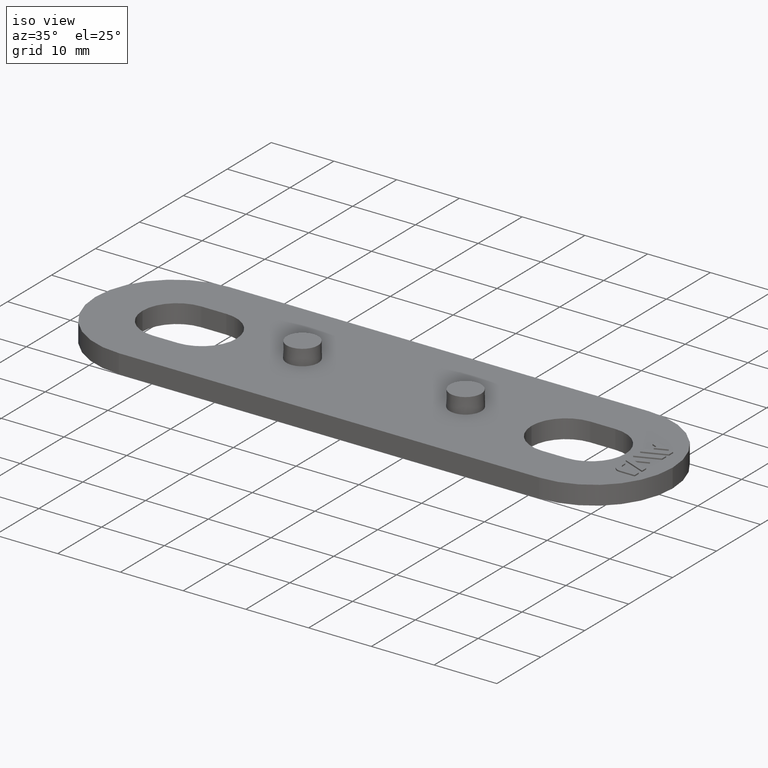
[diagram: clean part render]
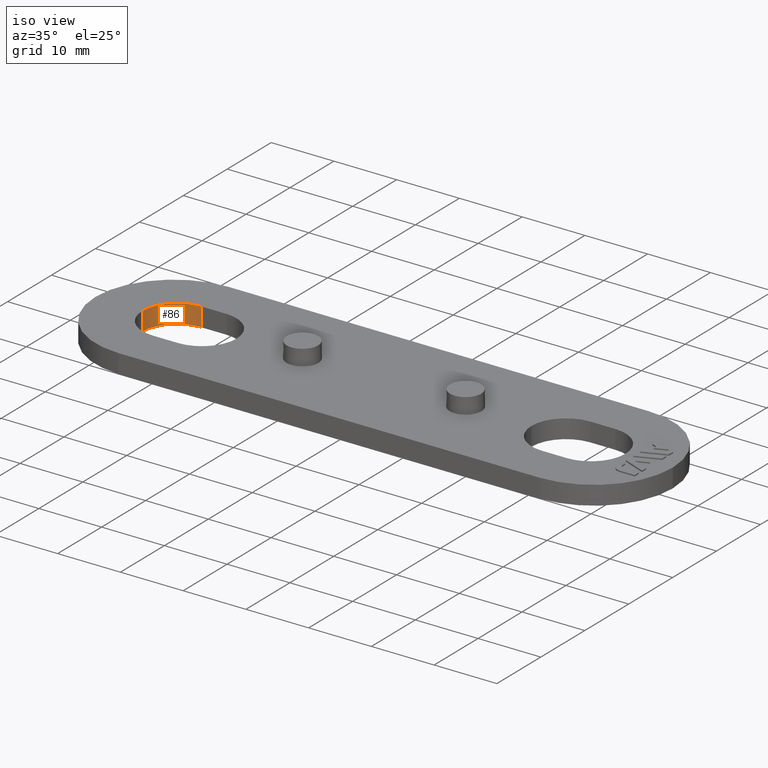
[diagram: same view with one face highlighted and labeled with its STEP entity id]
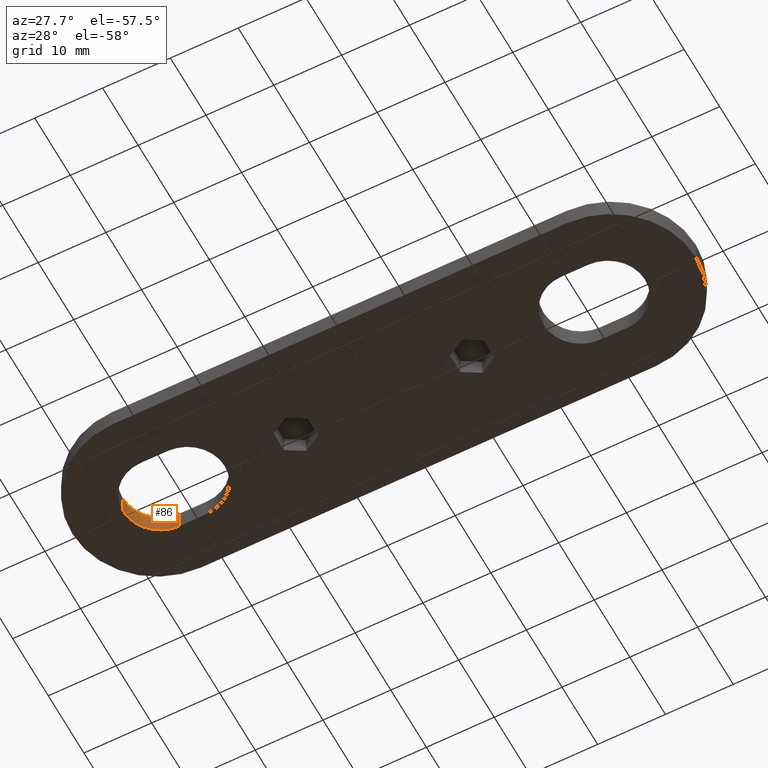
[diagram: same view with one face highlighted and labeled with its STEP entity id]
A machine part, iso view. The second image highlights one B-rep face of the part: STEP entity #86.
A second angle (auxiliary view) of the same face is appended — the face is thin or edge-on in the first view.
In plain terms, the highlighted cylindrical surface (partial cylindrical patch) has radius 5.5 mm, axis along (0, -0, -1).
Its self-contained STEP definition (entity closure, byte-faithful):
#86 = ADVANCED_FACE( '', ( #182 ), #183, .F. );
#182 = FACE_OUTER_BOUND( '', #339, .T. );
#183 = CYLINDRICAL_SURFACE( '', #340, 5.49999999999999 );
#339 = EDGE_LOOP( '', ( #608, #609, #610, #611 ) );
#340 = AXIS2_PLACEMENT_3D( '', #612, #613, #614 );
#608 = ORIENTED_EDGE( '', *, *, #1111, .F. );
#609 = ORIENTED_EDGE( '', *, *, #1121, .T. );
#610 = ORIENTED_EDGE( '', *, *, #1054, .T. );
#611 = ORIENTED_EDGE( '', *, *, #1122, .F. );
#612 = CARTESIAN_POINT( '', ( -33.0000000000000, -8.67361799219336E-015, -1.00001003866534E-005 ) );
#613 = DIRECTION( '', ( 0.000000000000000, -6.12303176911189E-017, -1.00000000000000 ) );
#614 = DIRECTION( '', ( 5.78241158658935E-017, -1.00000000000000, 6.12303176911189E-017 ) );
#1054 = EDGE_CURVE( '', #1257, #1254, #1258, .T. );
#1111 = EDGE_CURVE( '', #1364, #1355, #1366, .T. );
#1121 = EDGE_CURVE( '', #1364, #1257, #1380, .T. );
#1122 = EDGE_CURVE( '', #1355, #1254, #1381, .T. );
#1254 = VERTEX_POINT( '', #1567 );
#1257 = VERTEX_POINT( '', #1570 );
#1258 = CIRCLE( '', #1571, 5.49999999999999 );
#1355 = VERTEX_POINT( '', #1709 );
#1364 = VERTEX_POINT( '', #1719 );
#1366 = CIRCLE( '', #1722, 5.49999999999999 );
#1380 = LINE( '', #1741, #1742 );
#1381 = LINE( '', #1743, #1744 );
#1567 = CARTESIAN_POINT( '', ( -38.5000000000000, -7.62256450512543E-015, 3.00000300009623 ) );
#1570 = CARTESIAN_POINT( '', ( -33.0000000000001, 5.49999999999998, 3.00000300009623 ) );
#1571 = AXIS2_PLACEMENT_3D( '', #1992, #1993, #1994 );
#1709 = CARTESIAN_POINT( '', ( -38.5000000000000, -7.18603553037078E-015, -2.77555756156289E-014 ) );
#1719 = CARTESIAN_POINT( '', ( -33.0000000000000, 5.49999999999998, -2.80923423629301E-014 ) );
#1722 = AXIS2_PLACEMENT_3D( '', #2077, #2078, #2079 );
#1741 = CARTESIAN_POINT( '', ( -33.0000000000001, 5.49999999999998, -1.00001003869902E-005 ) );
#1742 = VECTOR( '', #2097, 1000.00000000000 );
#1743 = CARTESIAN_POINT( '', ( -38.5000000000000, -7.80625625420496E-015, -1.00001003866534E-005 ) );
#1744 = VECTOR( '', #2098, 1000.00000000000 );
#1992 = CARTESIAN_POINT( '', ( -33.0000000000000, -8.48992624311383E-015, 3.00000300009623 ) );
#1993 = DIRECTION( '', ( 0.000000000000000, 6.12303176911189E-017, 1.00000000000000 ) );
#1994 = DIRECTION( '', ( 5.78241158658935E-017, -1.00000000000000, 6.12303176911189E-017 ) );
#2077 = CARTESIAN_POINT( '', ( -33.0000000000000, -8.67361737988404E-015, -2.77555756156289E-014 ) );
#2078 = DIRECTION( '', ( 0.000000000000000, 6.12303176911189E-017, 1.00000000000000 ) );
#2079 = DIRECTION( '', ( 0.000000000000000, -1.00000000000000, 6.12303176911189E-017 ) );
#2097 = DIRECTION( '', ( 0.000000000000000, 6.12303176911189E-017, 1.00000000000000 ) );
#2098 = DIRECTION( '', ( 0.000000000000000, 6.12303176911189E-017, 1.00000000000000 ) );